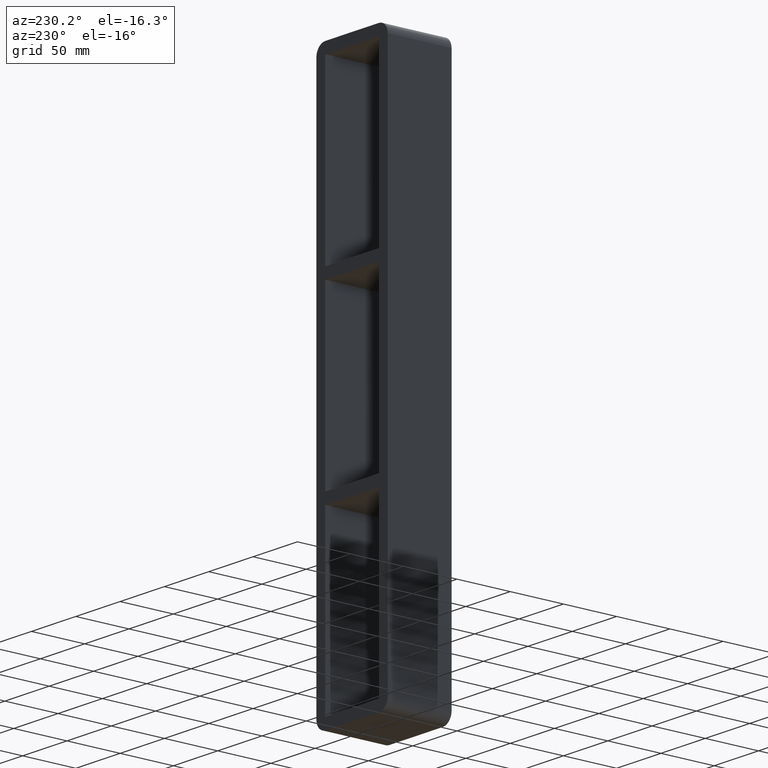
[diagram: clean part render]
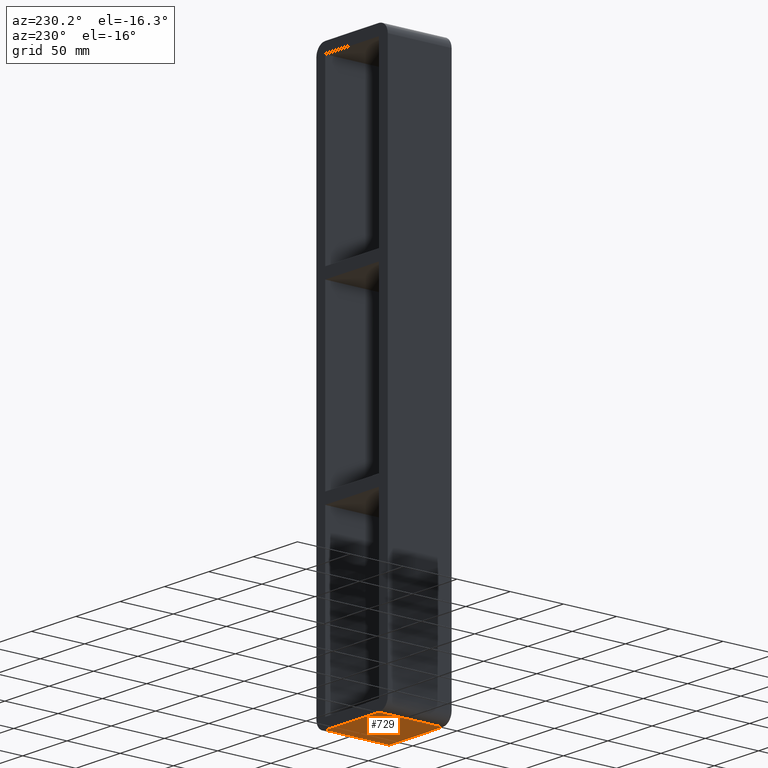
[diagram: same view with one face highlighted and labeled with its STEP entity id]
A machine part, auxiliary view. The second image highlights one B-rep face of the part: STEP entity #729.
In plain terms, the highlighted planar face has unit normal (0, 0, -1).
Its self-contained STEP definition (entity closure, byte-faithful):
#370=CARTESIAN_POINT('',(30.250000000000004,57.0,-259.25));
#371=VERTEX_POINT('',#370);
#389=CARTESIAN_POINT('',(30.250000000000004,-3.0,-259.25));
#390=VERTEX_POINT('',#389);
#398=CARTESIAN_POINT('',(30.250000000000004,-3.0,-259.25));
#399=DIRECTION('',(0.0,1.0,0.0));
#400=VECTOR('',#399,60.0);
#401=LINE('',#398,#400);
#402=EDGE_CURVE('',#390,#371,#401,.T.);
#455=CARTESIAN_POINT('',(-30.250000000000004,-3.0,-259.25));
#456=VERTEX_POINT('',#455);
#464=CARTESIAN_POINT('',(-30.25,-3.0,-259.25));
#465=DIRECTION('',(1.0,0.0,0.0));
#466=VECTOR('',#465,60.5);
#467=LINE('',#464,#466);
#468=EDGE_CURVE('',#456,#390,#467,.T.);
#564=CARTESIAN_POINT('',(-30.250000000000004,57.0,-259.25));
#565=VERTEX_POINT('',#564);
#573=CARTESIAN_POINT('',(-30.250000000000004,57.0,-259.25));
#574=DIRECTION('',(0.0,-1.0,0.0));
#575=VECTOR('',#574,60.0);
#576=LINE('',#573,#575);
#577=EDGE_CURVE('',#565,#456,#576,.T.);
#713=CARTESIAN_POINT('',(40.25,0.0,-259.25));
#714=DIRECTION('',(0.0,0.0,-1.0));
#715=DIRECTION('',(-1.0,0.0,0.0));
#716=AXIS2_PLACEMENT_3D('',#713,#714,#715);
#717=PLANE('',#716);
#718=ORIENTED_EDGE('',*,*,#402,.F.);
#719=ORIENTED_EDGE('',*,*,#468,.F.);
#720=ORIENTED_EDGE('',*,*,#577,.F.);
#721=CARTESIAN_POINT('',(30.25,57.0,-259.25));
#722=DIRECTION('',(-1.0,0.0,0.0));
#723=VECTOR('',#722,60.5);
#724=LINE('',#721,#723);
#725=EDGE_CURVE('',#371,#565,#724,.T.);
#726=ORIENTED_EDGE('',*,*,#725,.F.);
#727=EDGE_LOOP('',(#718,#719,#720,#726));
#728=FACE_OUTER_BOUND('',#727,.T.);
#729=ADVANCED_FACE('',(#728),#717,.T.);